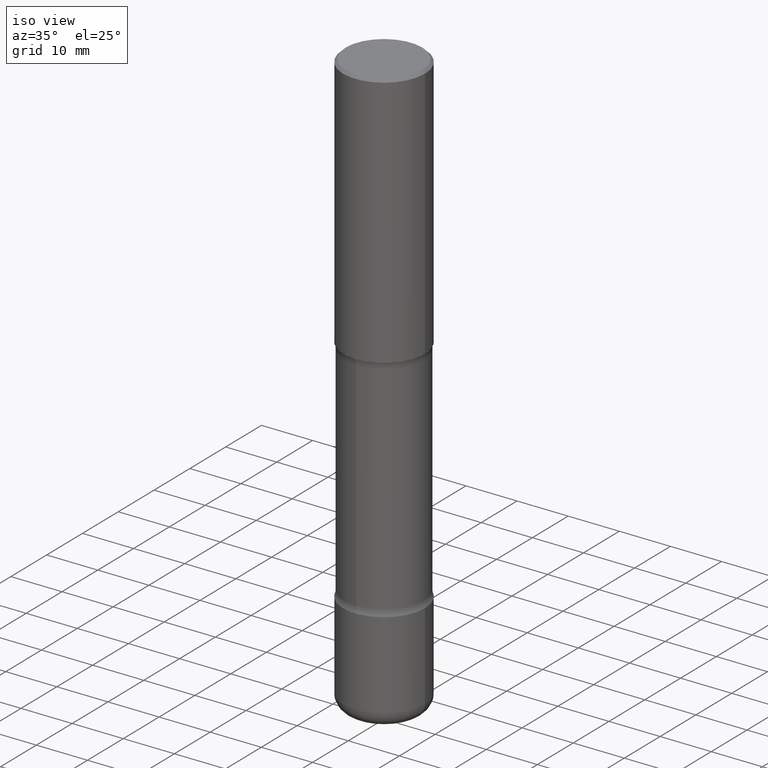
[diagram: clean part render]
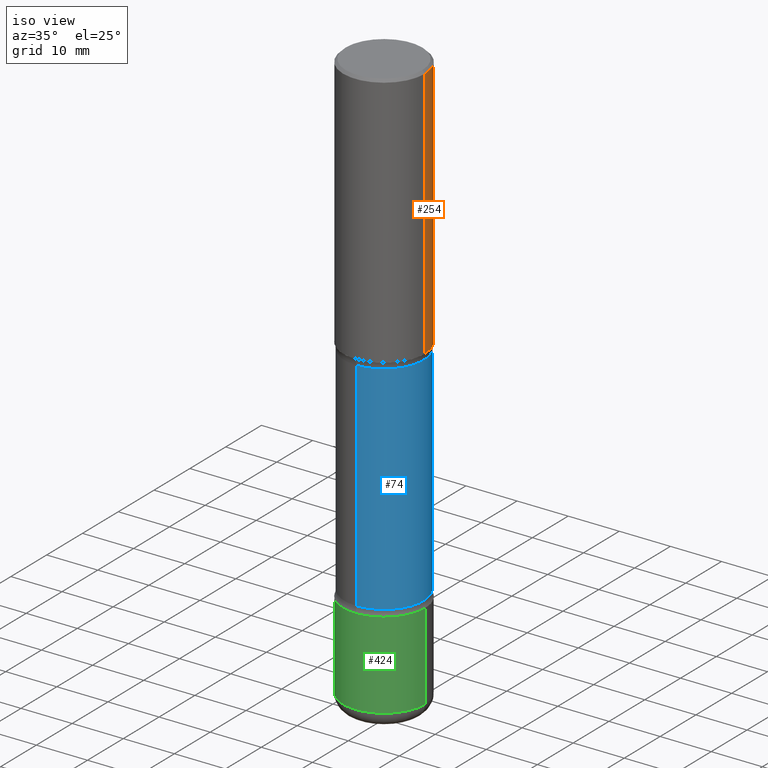
[diagram: same view with three faces highlighted in distinct colors, each labeled with its STEP entity id]
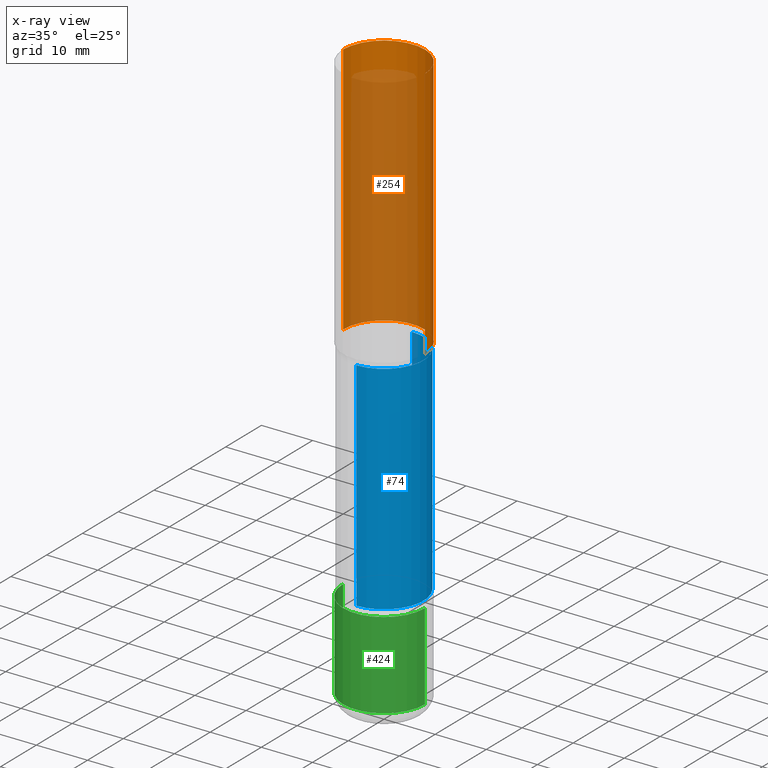
[diagram: x-ray of the same camera — body ghosted, the three highlighted faces saturated]
A machine part, iso view with three faces highlighted in distinct colors.
The next image is the same camera in x-ray (body ghosted, the three faces saturated) — at least one of them is partly hidden behind the body in this view.
Their STEP definitions:

[orange] entity #254 — the highlighted cylindrical surface (partial cylindrical patch) has radius 7.9997 mm, axis along (-0, 0, 1).
#40 = LINE ( 'NONE', #220, #173 ) ;
#47 = EDGE_CURVE ( 'NONE', #221, #186, #192, .T. ) ;
#111 = CARTESIAN_POINT ( 'NONE',  ( 0.3149500000000001743, -9.072265110850023156E-15, -1.968500000000000139 ) ) ;
#149 = DIRECTION ( 'NONE',  ( 1.000000000000000000, -6.982962677686266711E-15, 4.876176775795936353E-29 ) ) ;
#151 = DIRECTION ( 'NONE',  ( -2.445468806185136597E-29, 3.491481338843145583E-15, 1.000000000000000000 ) ) ;
#156 = ORIENTED_EDGE ( 'NONE', *, *, #298, .F. ) ;
#161 = CYLINDRICAL_SURFACE ( 'NONE', #523, 0.3149500000000000077 ) ;
#173 = VECTOR ( 'NONE', #183, 39.37007874015748143 ) ;
#176 = CARTESIAN_POINT ( 'NONE',  ( -0.3149499999999998967, 2.129454468560425784E-15, -0.02000000000000006981 ) ) ;
#183 = DIRECTION ( 'NONE',  ( -2.445468806185136877E-29, 3.491481338843145188E-15, 1.000000000000000000 ) ) ;
#186 = VERTEX_POINT ( 'NONE', #272 ) ;
#192 = CIRCLE ( 'NONE', #280, 0.3149500000000001743 ) ;
#196 = DIRECTION ( 'NONE',  ( -2.445468806185136877E-29, 3.491481338843145188E-15, 1.000000000000000000 ) ) ;
#209 = ORIENTED_EDGE ( 'NONE', *, *, #528, .T. ) ;
#220 = CARTESIAN_POINT ( 'NONE',  ( -0.3149500000000000077, 2.237854346276435590E-15, -1.549218606675782676E-29 ) ) ;
#221 = VERTEX_POINT ( 'NONE', #111 ) ;
#235 = LINE ( 'NONE', #405, #487 ) ;
#254 = ADVANCED_FACE ( 'NONE', ( #544 ), #161, .T. ) ;
#255 = ORIENTED_EDGE ( 'NONE', *, *, #47, .T. ) ;
#260 = DIRECTION ( 'NONE',  ( 1.000000000000000000, -6.982962677686265922E-15, 0.000000000000000000 ) ) ;
#270 = EDGE_CURVE ( 'NONE', #221, #387, #235, .T. ) ;
#272 = CARTESIAN_POINT ( 'NONE',  ( -0.3149500000000001743, -1.233550974868359743E-15, -1.968500000000000139 ) ) ;
#280 = AXIS2_PLACEMENT_3D ( 'NONE', #560, #461, #327 ) ;
#291 = AXIS2_PLACEMENT_3D ( 'NONE', #360, #303, #260 ) ;
#294 = CARTESIAN_POINT ( 'NONE',  ( 0.3149499999999998967, -2.230543471175006266E-15, -0.02000000000000006981 ) ) ;
#298 = EDGE_CURVE ( 'NONE', #387, #443, #313, .T. ) ;
#300 = ORIENTED_EDGE ( 'NONE', *, *, #270, .F. ) ;
#303 = DIRECTION ( 'NONE',  ( -2.445468806185136597E-29, 3.491481338843145583E-15, 1.000000000000000000 ) ) ;
#313 = CIRCLE ( 'NONE', #291, 0.3149499999999998967 ) ;
#327 = DIRECTION ( 'NONE',  ( 1.000000000000000000, -6.982962677686269866E-15, 0.000000000000000000 ) ) ;
#360 = CARTESIAN_POINT ( 'NONE',  ( 4.890937612370289799E-31, -6.982962677686315028E-17, -0.02000000000000006981 ) ) ;
#387 = VERTEX_POINT ( 'NONE', #294 ) ;
#405 = CARTESIAN_POINT ( 'NONE',  ( 0.3149500000000000077, -2.199284095337289871E-15, 1.535751875536930130E-29 ) ) ;
#422 = EDGE_LOOP ( 'NONE', ( #255, #209, #156, #300 ) ) ;
#443 = VERTEX_POINT ( 'NONE', #176 ) ;
#449 = CARTESIAN_POINT ( 'NONE',  ( 0.000000000000000000, 0.000000000000000000, 0.000000000000000000 ) ) ;
#461 = DIRECTION ( 'NONE',  ( -2.445468806185136597E-29, 3.491481338843145583E-15, 1.000000000000000000 ) ) ;
#487 = VECTOR ( 'NONE', #196, 39.37007874015748143 ) ;
#523 = AXIS2_PLACEMENT_3D ( 'NONE', #449, #151, #149 ) ;
#528 = EDGE_CURVE ( 'NONE', #186, #443, #40, .T. ) ;
#544 = FACE_OUTER_BOUND ( 'NONE', #422, .T. ) ;
#560 = CARTESIAN_POINT ( 'NONE',  ( 4.813905344975441835E-29, -6.872981015512731707E-15, -1.968500000000000139 ) ) ;

[blue] entity #74 — the highlighted cylindrical surface (partial cylindrical patch) has radius 7.747 mm, axis along (0, -0, -1).
#13 = VERTEX_POINT ( 'NONE', #163 ) ;
#22 = AXIS2_PLACEMENT_3D ( 'NONE', #166, #497, #372 ) ;
#38 = CIRCLE ( 'NONE', #56, 0.3049999999999999378 ) ;
#56 = AXIS2_PLACEMENT_3D ( 'NONE', #87, #426, #423 ) ;
#63 = VERTEX_POINT ( 'NONE', #214 ) ;
#74 = ADVANCED_FACE ( 'NONE', ( #378 ), #370, .T. ) ;
#77 = EDGE_CURVE ( 'NONE', #518, #13, #331, .T. ) ;
#87 = CARTESIAN_POINT ( 'NONE',  ( 9.023830806565153848E-29, -1.289277884509281722E-14, -3.691327743043726795 ) ) ;
#95 = ORIENTED_EDGE ( 'NONE', *, *, #135, .F. ) ;
#98 = ORIENTED_EDGE ( 'NONE', *, *, #77, .T. ) ;
#127 = DIRECTION ( 'NONE',  ( 2.510864649412157600E-29, -3.397830769241806549E-15, -1.000000000000000000 ) ) ;
#135 = EDGE_CURVE ( 'NONE', #63, #13, #38, .T. ) ;
#141 = DIRECTION ( 'NONE',  ( 2.510864649412157600E-29, -3.397830769241806549E-15, -1.000000000000000000 ) ) ;
#163 = CARTESIAN_POINT ( 'NONE',  ( -2.126582866859139470E-15, -0.3050000000000128719, -3.691327743043725906 ) ) ;
#165 = EDGE_LOOP ( 'NONE', ( #492, #98, #95, #516 ) ) ;
#166 = CARTESIAN_POINT ( 'NONE',  ( 4.820755151858623476E-29, -7.204961388123744804E-15, -2.017372256956273979 ) ) ;
#193 = VECTOR ( 'NONE', #141, 39.37007874015748143 ) ;
#214 = CARTESIAN_POINT ( 'NONE',  ( 2.129803616694401198E-15, 0.3049999999999870592, -3.691327743043728127 ) ) ;
#245 = CARTESIAN_POINT ( 'NONE',  ( 2.129803616694359388E-15, 0.3049999999999927769, -2.017372256956274867 ) ) ;
#246 = CARTESIAN_POINT ( 'NONE',  ( -2.092451889320205392E-15, -0.3050000000000157030, -4.527599999999998737 ) ) ;
#278 = VECTOR ( 'NONE', #127, 39.37007874015748143 ) ;
#331 = LINE ( 'NONE', #246, #278 ) ;
#337 = DIRECTION ( 'NONE',  ( 6.982962677686266711E-15, 1.000000000000000000, -3.582751467100674095E-15 ) ) ;
#350 = LINE ( 'NONE', #531, #193 ) ;
#367 = CARTESIAN_POINT ( 'NONE',  ( -2.126582866859183647E-15, -0.3050000000000072098, -2.017372256956272647 ) ) ;
#370 = CYLINDRICAL_SURFACE ( 'NONE', #452, 0.3049999999999999378 ) ;
#372 = DIRECTION ( 'NONE',  ( 6.982962677686266711E-15, 1.000000000000000000, -3.582751467100673306E-15 ) ) ;
#378 = FACE_OUTER_BOUND ( 'NONE', #165, .T. ) ;
#418 = CARTESIAN_POINT ( 'NONE',  ( 1.112359725384078225E-28, -1.573429045124212958E-14, -4.527600000000000513 ) ) ;
#423 = DIRECTION ( 'NONE',  ( 6.982962677686266711E-15, 1.000000000000000000, -3.582751467100674095E-15 ) ) ;
#426 = DIRECTION ( 'NONE',  ( 2.510864649412157880E-29, -3.397830769241806549E-15, -1.000000000000000000 ) ) ;
#452 = AXIS2_PLACEMENT_3D ( 'NONE', #418, #556, #337 ) ;
#455 = EDGE_CURVE ( 'NONE', #493, #63, #350, .T. ) ;
#485 = EDGE_CURVE ( 'NONE', #493, #518, #488, .T. ) ;
#488 = CIRCLE ( 'NONE', #22, 0.3049999999999999933 ) ;
#492 = ORIENTED_EDGE ( 'NONE', *, *, #485, .T. ) ;
#493 = VERTEX_POINT ( 'NONE', #245 ) ;
#497 = DIRECTION ( 'NONE',  ( 2.510864649412157880E-29, -3.397830769241806549E-15, -1.000000000000000000 ) ) ;
#516 = ORIENTED_EDGE ( 'NONE', *, *, #455, .F. ) ;
#518 = VERTEX_POINT ( 'NONE', #367 ) ;
#531 = CARTESIAN_POINT ( 'NONE',  ( 2.129803616694422103E-15, 0.3049999999999842282, -4.527600000000001401 ) ) ;
#556 = DIRECTION ( 'NONE',  ( 2.510864649412157880E-29, -3.397830769241806549E-15, -1.000000000000000000 ) ) ;

[green] entity #424 — the highlighted cylindrical surface (partial cylindrical patch) has radius 7.9997 mm, axis along (-0, 0, 1).
#1 = CARTESIAN_POINT ( 'NONE',  ( 0.3149500000000002298, -1.525812259887842581E-14, -3.740200000000000191 ) ) ;
#49 = AXIS2_PLACEMENT_3D ( 'NONE', #170, #472, #89 ) ;
#52 = CARTESIAN_POINT ( 'NONE',  ( 9.146542428893648262E-29, -1.305883850354113437E-14, -3.740200000000000191 ) ) ;
#66 = VERTEX_POINT ( 'NONE', #324 ) ;
#73 = CARTESIAN_POINT ( 'NONE',  ( 0.3149500000000002853, -2.199284095337291843E-15, 1.535751875536931531E-29 ) ) ;
#86 = AXIS2_PLACEMENT_3D ( 'NONE', #52, #345, #219 ) ;
#89 = DIRECTION ( 'NONE',  ( 1.000000000000000000, -6.982962677686263555E-15, 0.000000000000000000 ) ) ;
#91 = CARTESIAN_POINT ( 'NONE',  ( 0.000000000000000000, 0.000000000000000000, 0.000000000000000000 ) ) ;
#101 = VERTEX_POINT ( 'NONE', #124 ) ;
#107 = ORIENTED_EDGE ( 'NONE', *, *, #336, .F. ) ;
#112 = CIRCLE ( 'NONE', #86, 0.3149500000000002298 ) ;
#117 = CARTESIAN_POINT ( 'NONE',  ( -0.3149500000000002298, -1.198940838730855529E-14, -3.740200000000000191 ) ) ;
#124 = CARTESIAN_POINT ( 'NONE',  ( -0.3149500000000002853, -1.315783261735241693E-14, -4.409500000000000419 ) ) ;
#144 = VERTEX_POINT ( 'NONE', #1 ) ;
#145 = ORIENTED_EDGE ( 'NONE', *, *, #458, .T. ) ;
#157 = EDGE_CURVE ( 'NONE', #101, #66, #342, .T. ) ;
#170 = CARTESIAN_POINT ( 'NONE',  ( 1.078329470087336022E-28, -1.539568696362885450E-14, -4.409500000000000419 ) ) ;
#219 = DIRECTION ( 'NONE',  ( 1.000000000000000000, -6.982962677686264344E-15, 0.000000000000000000 ) ) ;
#224 = DIRECTION ( 'NONE',  ( -2.445468806185136597E-29, 3.491481338843145583E-15, 1.000000000000000000 ) ) ;
#262 = CYLINDRICAL_SURFACE ( 'NONE', #420, 0.3149500000000002853 ) ;
#292 = VECTOR ( 'NONE', #495, 39.37007874015748143 ) ;
#308 = LINE ( 'NONE', #73, #442 ) ;
#324 = CARTESIAN_POINT ( 'NONE',  ( 0.3149500000000002853, -1.759497105896614279E-14, -4.409500000000000419 ) ) ;
#336 = EDGE_CURVE ( 'NONE', #486, #144, #112, .T. ) ;
#341 = ORIENTED_EDGE ( 'NONE', *, *, #550, .F. ) ;
#342 = CIRCLE ( 'NONE', #49, 0.3149500000000002853 ) ;
#345 = DIRECTION ( 'NONE',  ( -2.445468806185136597E-29, 3.491481338843145583E-15, 1.000000000000000000 ) ) ;
#366 = DIRECTION ( 'NONE',  ( -2.445468806185136877E-29, 3.491481338843145188E-15, 1.000000000000000000 ) ) ;
#393 = DIRECTION ( 'NONE',  ( 1.000000000000000000, -6.982962677686267499E-15, 4.876176775795936353E-29 ) ) ;
#406 = LINE ( 'NONE', #542, #292 ) ;
#420 = AXIS2_PLACEMENT_3D ( 'NONE', #91, #224, #393 ) ;
#424 = ADVANCED_FACE ( 'NONE', ( #481 ), #262, .T. ) ;
#428 = ORIENTED_EDGE ( 'NONE', *, *, #157, .T. ) ;
#442 = VECTOR ( 'NONE', #366, 39.37007874015748143 ) ;
#448 = EDGE_LOOP ( 'NONE', ( #341, #428, #145, #107 ) ) ;
#458 = EDGE_CURVE ( 'NONE', #66, #144, #308, .T. ) ;
#472 = DIRECTION ( 'NONE',  ( -2.445468806185136597E-29, 3.491481338843145583E-15, 1.000000000000000000 ) ) ;
#481 = FACE_OUTER_BOUND ( 'NONE', #448, .T. ) ;
#486 = VERTEX_POINT ( 'NONE', #117 ) ;
#495 = DIRECTION ( 'NONE',  ( -2.445468806185136877E-29, 3.491481338843145188E-15, 1.000000000000000000 ) ) ;
#542 = CARTESIAN_POINT ( 'NONE',  ( -0.3149500000000002853, 2.237854346276437562E-15, -1.549218606675783797E-29 ) ) ;
#550 = EDGE_CURVE ( 'NONE', #101, #486, #406, .T. ) ;